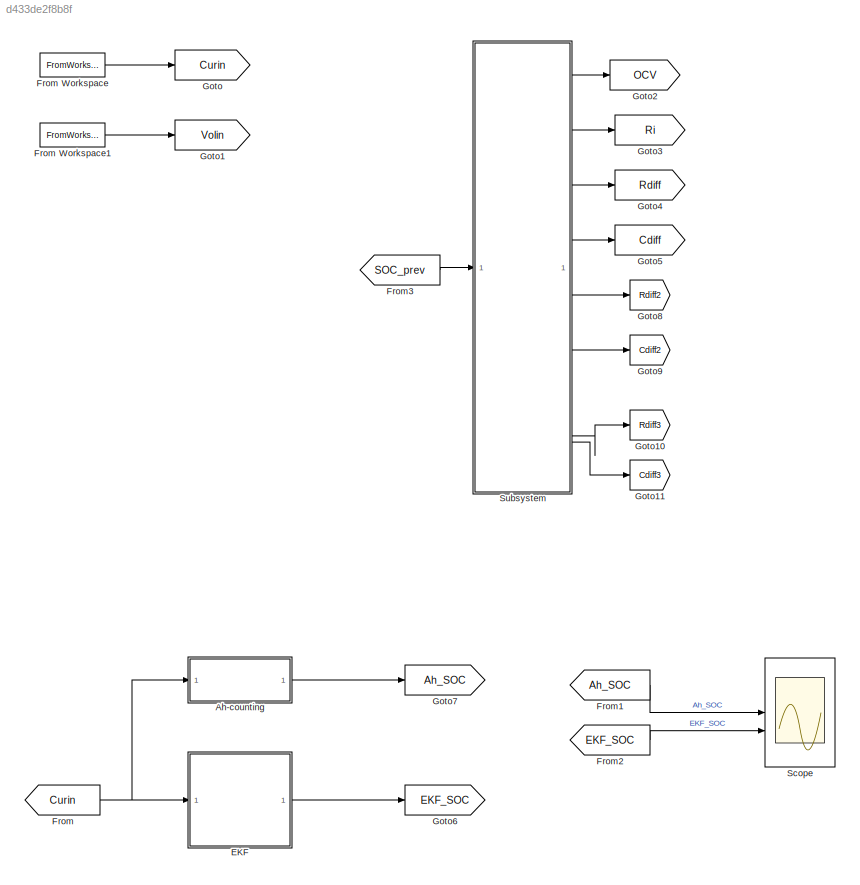
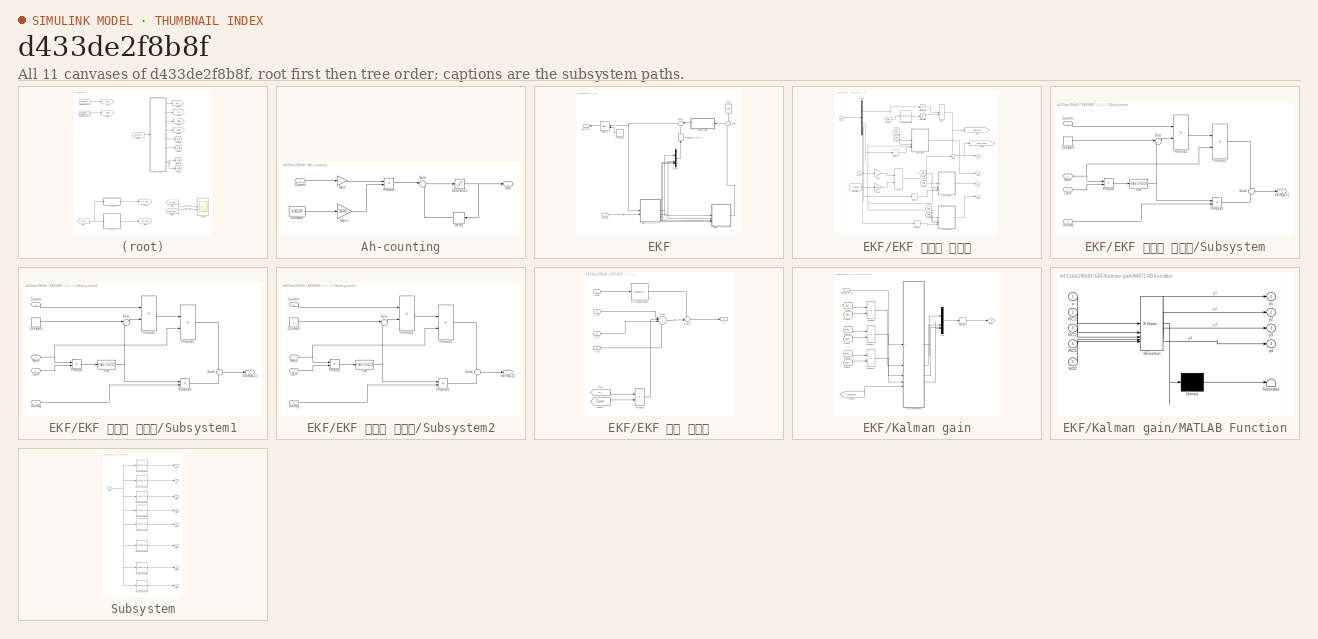
[diagram: thumbnail index - all 11 canvases of the model, root first then tree order]
MODEL slx_d433de2f8b8f
KIND model
CONFIG AbsTol = auto
CONFIG EnableMultiTasking = off
CONFIG FixedStep = auto
CONFIG MaxStep = auto
CONFIG MinStep = auto
CONFIG RelTol = 1e-3
CONFIG SampleTimeConstraint = Unconstrained
CONFIG SolverName = VariableStepAuto
CONFIG StartTime = 0.0
CONFIG StopTime = length(Current)
BLOCK [SubSystem] Ah-counting
BLOCK [Constant] Ah-counting/Constant
  Value = 4.8529
BLOCK [Inport] Ah-counting/Current
BLOCK [Delay] Ah-counting/Delay
  DelayLength = 1
  InitialCondition = 1
  InputPortMap = u0
  NameLocation = top
BLOCK [Gain] Ah-counting/Gain
BLOCK [Gain] Ah-counting/Gain1
  Gain = 3600
BLOCK [Product] Ah-counting/Product
  Inputs = */
BLOCK [Outport] Ah-counting/SOC
BLOCK [Saturate] Ah-counting/Saturation
  LowerLimit = 0
  UpperLimit = 1
BLOCK [Sum] Ah-counting/Sum
  Inputs = |++
BLOCK [SubSystem] EKF
BLOCK [Constant] EKF/Constant
  NameLocation = top
BLOCK [Inport] EKF/Current
BLOCK [Outport] EKF/EKF SOC
  NameLocation = top
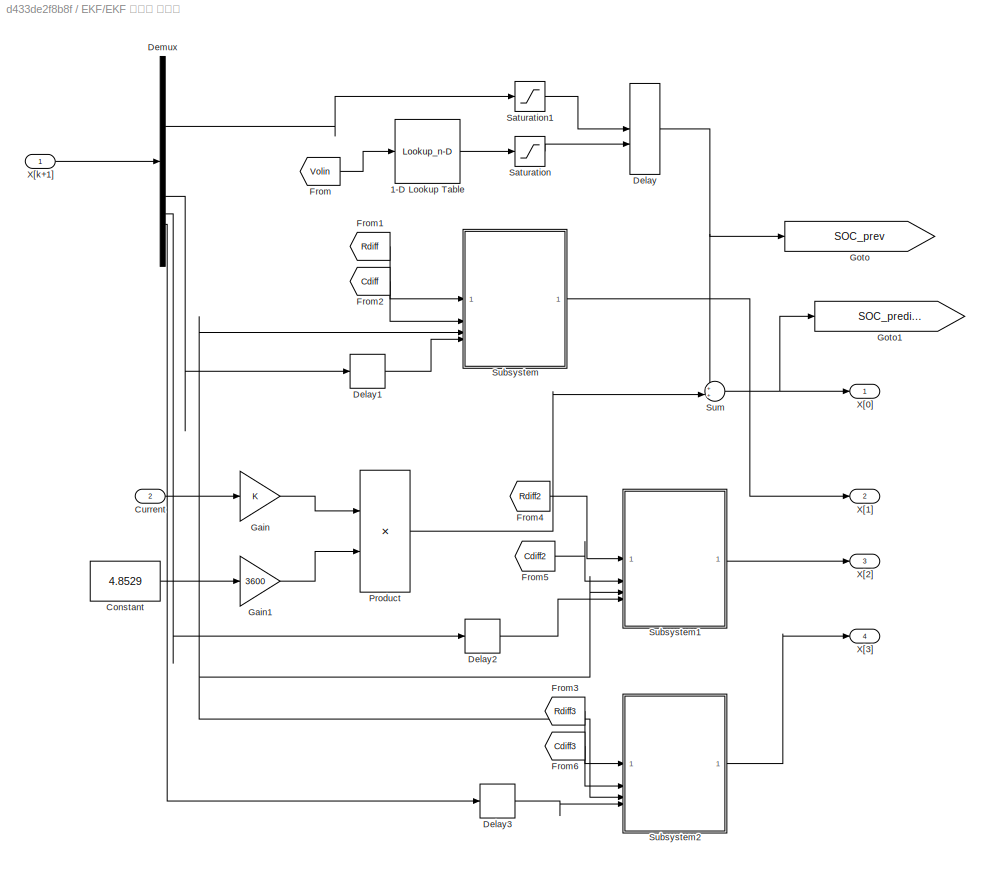
BLOCK [SubSystem] EKF/EKF 시스템 방정식
BLOCK [Lookup_n-D] EKF/EKF 시스템 방정식/1-D Lookup Table
  BreakpointsForDimension1 = SOC_OCV
  InputPortMap = u0
  InternalRulePriority = Speed
  NumberOfTableDimensions = 1
  RndMeth = Simplest
  Table = OCV_fit
BLOCK [Constant] EKF/EKF 시스템 방정식/Constant
  Value = 4.8529
BLOCK [Inport] EKF/EKF 시스템 방정식/Current
  Port = 2
BLOCK [Delay] EKF/EKF 시스템 방정식/Delay
  DelayLength = 1
  InitialConditionSource = Input port
  InputPortMap = u0,p4
BLOCK [Delay] EKF/EKF 시스템 방정식/Delay1
  DelayLength = 1
  InputPortMap = u0
BLOCK [Delay] EKF/EKF 시스템 방정식/Delay2
  DelayLength = 1
  InputPortMap = u0
BLOCK [Delay] EKF/EKF 시스템 방정식/Delay3
  DelayLength = 1
  InputPortMap = u0
BLOCK [Demux] EKF/EKF 시스템 방정식/Demux
BLOCK [From] EKF/EKF 시스템 방정식/From
  GotoTag = Volin
  TagVisibility = global
BLOCK [From] EKF/EKF 시스템 방정식/From1
  GotoTag = Rdiff
  TagVisibility = global
BLOCK [From] EKF/EKF 시스템 방정식/From2
  GotoTag = Cdiff
  TagVisibility = global
BLOCK [From] EKF/EKF 시스템 방정식/From3
  GotoTag = Rdiff3
  TagVisibility = global
BLOCK [From] EKF/EKF 시스템 방정식/From4
  GotoTag = Rdiff2
  TagVisibility = global
BLOCK [From] EKF/EKF 시스템 방정식/From5
  GotoTag = Cdiff2
  TagVisibility = global
BLOCK [From] EKF/EKF 시스템 방정식/From6
  GotoTag = Cdiff3
  TagVisibility = global
BLOCK [Gain] EKF/EKF 시스템 방정식/Gain
BLOCK [Gain] EKF/EKF 시스템 방정식/Gain1
  Gain = 3600
BLOCK [Goto] EKF/EKF 시스템 방정식/Goto
  GotoTag = SOC_prev
  TagVisibility = global
BLOCK [Goto] EKF/EKF 시스템 방정식/Goto1
  GotoTag = SOC_predict
  TagVisibility = global
BLOCK [Product] EKF/EKF 시스템 방정식/Product
  Inputs = */
BLOCK [Saturate] EKF/EKF 시스템 방정식/Saturation
  LowerLimit = 0
  UpperLimit = 1
BLOCK [Saturate] EKF/EKF 시스템 방정식/Saturation1
  LowerLimit = 0
  UpperLimit = 1
BLOCK [SubSystem] EKF/EKF 시스템 방정식/Subsystem
BLOCK [Inport] EKF/EKF 시스템 방정식/Subsystem/Cdiff
  Port = 2
BLOCK [Constant] EKF/EKF 시스템 방정식/Subsystem/Constant
BLOCK [Inport] EKF/EKF 시스템 방정식/Subsystem/Current
  Port = 3
BLOCK [Fcn] EKF/EKF 시스템 방정식/Subsystem/Fcn
  Expr = exp(-1/u(1))
BLOCK [Product] EKF/EKF 시스템 방정식/Subsystem/Product
BLOCK [Product] EKF/EKF 시스템 방정식/Subsystem/Product1
BLOCK [Product] EKF/EKF 시스템 방정식/Subsystem/Product2
BLOCK [Product] EKF/EKF 시스템 방정식/Subsystem/Product3
BLOCK [Inport] EKF/EKF 시스템 방정식/Subsystem/Rdiff
BLOCK [Sum] EKF/EKF 시스템 방정식/Subsystem/Sum
  Inputs = |+-
BLOCK [Sum] EKF/EKF 시스템 방정식/Subsystem/Sum1
  Inputs = +|+
BLOCK [Outport] EKF/EKF 시스템 방정식/Subsystem/Vdiff[k+1]
BLOCK [Inport] EKF/EKF 시스템 방정식/Subsystem/Vdiff[k]
  Port = 4
BLOCK [SubSystem] EKF/EKF 시스템 방정식/Subsystem1
BLOCK [Inport] EKF/EKF 시스템 방정식/Subsystem1/Cdiff
  Port = 2
BLOCK [Constant] EKF/EKF 시스템 방정식/Subsystem1/Constant
BLOCK [Inport] EKF/EKF 시스템 방정식/Subsystem1/Current
  Port = 3
BLOCK [Fcn] EKF/EKF 시스템 방정식/Subsystem1/Fcn
  Expr = exp(-1/u(1))
BLOCK [Product] EKF/EKF 시스템 방정식/Subsystem1/Product
BLOCK [Product] EKF/EKF 시스템 방정식/Subsystem1/Product1
BLOCK [Product] EKF/EKF 시스템 방정식/Subsystem1/Product2
BLOCK [Product] EKF/EKF 시스템 방정식/Subsystem1/Product3
BLOCK [Inport] EKF/EKF 시스템 방정식/Subsystem1/Rdiff
BLOCK [Sum] EKF/EKF 시스템 방정식/Subsystem1/Sum
  Inputs = |+-
BLOCK [Sum] EKF/EKF 시스템 방정식/Subsystem1/Sum1
  Inputs = +|+
BLOCK [Outport] EKF/EKF 시스템 방정식/Subsystem1/Vdiff[k+1]
BLOCK [Inport] EKF/EKF 시스템 방정식/Subsystem1/Vdiff[k]
  Port = 4
BLOCK [SubSystem] EKF/EKF 시스템 방정식/Subsystem2
BLOCK [Inport] EKF/EKF 시스템 방정식/Subsystem2/Cdiff
  Port = 2
BLOCK [Constant] EKF/EKF 시스템 방정식/Subsystem2/Constant
BLOCK [Inport] EKF/EKF 시스템 방정식/Subsystem2/Current
  Port = 3
BLOCK [Fcn] EKF/EKF 시스템 방정식/Subsystem2/Fcn
  Expr = exp(-1/u(1))
BLOCK [Product] EKF/EKF 시스템 방정식/Subsystem2/Product
BLOCK [Product] EKF/EKF 시스템 방정식/Subsystem2/Product1
BLOCK [Product] EKF/EKF 시스템 방정식/Subsystem2/Product2
BLOCK [Product] EKF/EKF 시스템 방정식/Subsystem2/Product3
BLOCK [Inport] EKF/EKF 시스템 방정식/Subsystem2/Rdiff
BLOCK [Sum] EKF/EKF 시스템 방정식/Subsystem2/Sum
  Inputs = |+-
BLOCK [Sum] EKF/EKF 시스템 방정식/Subsystem2/Sum1
  Inputs = +|+
BLOCK [Outport] EKF/EKF 시스템 방정식/Subsystem2/Vdiff[k+1]
BLOCK [Inport] EKF/EKF 시스템 방정식/Subsystem2/Vdiff[k]
  Port = 4
BLOCK [Sum] EKF/EKF 시스템 방정식/Sum
  Inputs = ++|
BLOCK [Outport] EKF/EKF 시스템 방정식/X[0]
BLOCK [Outport] EKF/EKF 시스템 방정식/X[1]
  Port = 2
BLOCK [Outport] EKF/EKF 시스템 방정식/X[2]
  Port = 3
BLOCK [Outport] EKF/EKF 시스템 방정식/X[3]
  Port = 4
BLOCK [Inport] EKF/EKF 시스템 방정식/X[k+1]
BLOCK [SubSystem] EKF/EKF 측정 방정식
BLOCK [Lookup_n-D] EKF/EKF 측정 방정식/1-D Lookup Table
  BreakpointsForDimension1 = SOC_OCV
  InputPortMap = u0
  InternalRulePriority = Speed
  NumberOfTableDimensions = 1
  RndMeth = Simplest
  Table = OCV_fit
BLOCK [From] EKF/EKF 측정 방정식/From
  GotoTag = Ri
  TagVisibility = global
BLOCK [From] EKF/EKF 측정 방정식/From1
  GotoTag = Curin
  TagVisibility = global
BLOCK [Product] EKF/EKF 측정 방정식/Product
BLOCK [Sum] EKF/EKF 측정 방정식/Sum
  Inputs = |++++
BLOCK [Sum] EKF/EKF 측정 방정식/Sum1
  Inputs = ++|
BLOCK [Outport] EKF/EKF 측정 방정식/Vt
BLOCK [Inport] EKF/EKF 측정 방정식/X[0]
BLOCK [Inport] EKF/EKF 측정 방정식/X[1]
  Port = 2
BLOCK [Inport] EKF/EKF 측정 방정식/X[2]
  Port = 3
BLOCK [Inport] EKF/EKF 측정 방정식/X[3]
  Port = 4
BLOCK [From] EKF/From
  GotoTag = Volin
  NameLocation = left
  TagVisibility = global
BLOCK [SubSystem] EKF/Kalman gain
  NameLocation = top
BLOCK [From] EKF/Kalman gain/From
  GotoTag = Rdiff
  TagVisibility = global
BLOCK [From] EKF/Kalman gain/From1
  GotoTag = Cdiff
  TagVisibility = global
BLOCK [From] EKF/Kalman gain/From2
  GotoTag = SOC_predict
  TagVisibility = global
BLOCK [From] EKF/Kalman gain/From3
  GotoTag = Rdiff2
  TagVisibility = global
BLOCK [From] EKF/Kalman gain/From4
  GotoTag = Cdiff2
  TagVisibility = global
BLOCK [From] EKF/Kalman gain/From5
  GotoTag = Rdiff3
  TagVisibility = global
BLOCK [From] EKF/Kalman gain/From6
  GotoTag = Cdiff3
  TagVisibility = global
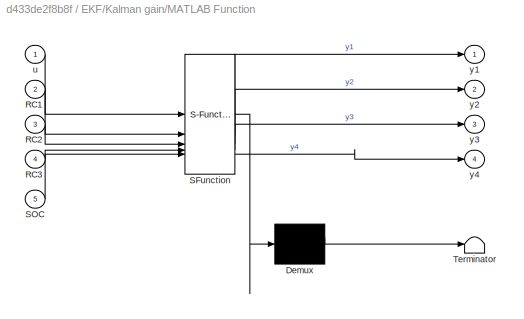
BLOCK [SubSystem] EKF/Kalman gain/MATLAB Function
  ErrorFcn = Stateflow.Translate.translate
  PermitHierarchicalResolution = ExplicitOnly
  SFBlockType = MATLAB Function
  TreatAsAtomicUnit = on
BLOCK [Demux] EKF/Kalman gain/MATLAB Function/ Demux 
  Outputs = 1
BLOCK [S-Function] EKF/Kalman gain/MATLAB Function/ SFunction 
  EnableBusSupport = off
  FunctionName = sf_sfun
  PortCounts = [5 5]
  SFcnIsStateOwnerBlock = off
  SFunctionDeploymentMode = off
  Tag = Stateflow S-Function 2
BLOCK [Terminator] EKF/Kalman gain/MATLAB Function/ Terminator 
BLOCK [Inport] EKF/Kalman gain/MATLAB Function/RC1
  Port = 2
BLOCK [Inport] EKF/Kalman gain/MATLAB Function/RC2
  Port = 3
BLOCK [Inport] EKF/Kalman gain/MATLAB Function/RC3
  Port = 4
BLOCK [Inport] EKF/Kalman gain/MATLAB Function/SOC
  Port = 5
BLOCK [Inport] EKF/Kalman gain/MATLAB Function/u
BLOCK [Outport] EKF/Kalman gain/MATLAB Function/y1
BLOCK [Outport] EKF/Kalman gain/MATLAB Function/y2
  Port = 2
BLOCK [Outport] EKF/Kalman gain/MATLAB Function/y3
  Port = 3
BLOCK [Outport] EKF/Kalman gain/MATLAB Function/y4
  Port = 4
BLOCK [Mux] EKF/Kalman gain/Mux
  DisplayOption = bar
BLOCK [Outport] EKF/Kalman gain/Out1
BLOCK [Product] EKF/Kalman gain/Product
BLOCK [Product] EKF/Kalman gain/Product1
BLOCK [Product] EKF/Kalman gain/Product2
BLOCK [Reshape] EKF/Kalman gain/Reshape
  OutputDimensionality = Customize
  OutputDimensions = [4,1]
BLOCK [Inport] EKF/Kalman gain/Voltage error
BLOCK [Mux] EKF/Mux
  DisplayOption = bar
BLOCK [Reshape] EKF/Reshape 2,1->4,1
  NameLocation = right
  OutputDimensionality = Customize
  OutputDimensions = [4,1]
BLOCK [Selector] EKF/Selector
  IndexOptions = Index vector (port)
  Indices = [1 3]
  InputPortWidth = 4
  NameLocation = top
  OutputSizes = 1
BLOCK [Sum] EKF/Sum
  Inputs = +|-
  NameLocation = top
BLOCK [Sum] EKF/Sum1
  Inputs = |++
  NameLocation = top
BLOCK [From] From
  GotoTag = Curin
  TagVisibility = global
BLOCK [FromWorkspace] From Workspace
  OutDataTypeStr = double
  SampleTime = 1
  VariableName = Current_in
BLOCK [FromWorkspace] From Workspace1
  OutDataTypeStr = double
  SampleTime = 1
  VariableName = Voltage_in
BLOCK [From] From1
  GotoTag = Ah_SOC
  TagVisibility = global
BLOCK [From] From2
  GotoTag = EKF_SOC
  TagVisibility = global
BLOCK [From] From3
  GotoTag = SOC_prev
  TagVisibility = global
BLOCK [Goto] Goto
  GotoTag = Curin
  TagVisibility = global
BLOCK [Goto] Goto1
  GotoTag = Volin
  TagVisibility = global
BLOCK [Goto] Goto10
  GotoTag = Rdiff3
  TagVisibility = global
BLOCK [Goto] Goto11
  GotoTag = Cdiff3
  TagVisibility = global
BLOCK [Goto] Goto2
  GotoTag = OCV
  TagVisibility = global
BLOCK [Goto] Goto3
  GotoTag = Ri
  TagVisibility = global
BLOCK [Goto] Goto4
  GotoTag = Rdiff
  TagVisibility = global
BLOCK [Goto] Goto5
  GotoTag = Cdiff
  TagVisibility = global
BLOCK [Goto] Goto6
  GotoTag = EKF_SOC
  TagVisibility = global
BLOCK [Goto] Goto7
  GotoTag = Ah_SOC
  TagVisibility = global
BLOCK [Goto] Goto8
  GotoTag = Rdiff2
  TagVisibility = global
BLOCK [Goto] Goto9
  GotoTag = Cdiff2
  TagVisibility = global
BLOCK [Scope] Scope
  ActiveDisplayYMaximum = 1.1255620860044682
  ActiveDisplayYMinimum = -0.12516694768269107
  Floating = off
  GraphicalSettings = {"AxesScalingProperties":{"AlignXAxis":"Center","AlignYAxis":"Center","AutoScaleXAxisLimits":false,"AxesScaling":"Manual","AxesScalingNumUpdates":10,"ExpandOnly":true,"ScaleAxesLimitsAtStop":false,"XAxisDataRange":100,"YAxisDataRange":80},"DisplayProperties":{"ColorOrder":["auto","auto","auto","auto","auto","auto","auto","auto","auto","auto","auto","auto","auto","auto","auto","auto","auto","auto",...<+2121ch>
  MultipleDisplayCache = [{"MaxYLimMag":1.1255620860044682,"MaxYLimReal":1.1255620860044682,"MinYLimMag":0,"MinYLimReal":-0.12516694768269107,"PlotAsMagnitudePhase":false,"ShowGrid":true,"ShowLegend":true,"Title":"%<SignalLabel>","YLabel":""}]
  NumInputPorts = 2
  ScopeFrameLocation = window
  ShowLegend = on
  Visible = on
  WasSavedAsWebScope = on
  WindowPosition = [-3.000000,86.000000,1920.000000,954.000000,]
BLOCK [SubSystem] Subsystem
BLOCK [Lookup_n-D] Subsystem/1-D Lookup Table
  BreakpointsForDimension1 = SOC_OCV
  InputPortMap = u0
  InternalRulePriority = Speed
  NumberOfTableDimensions = 1
  RndMeth = Simplest
  Table = OCV_fit
BLOCK [Lookup_n-D] Subsystem/1-D Lookup Table1
  BreakpointsForDimension1 = SOC_RC
  InputPortMap = u0
  InternalRulePriority = Speed
  NumberOfTableDimensions = 1
  RndMeth = Simplest
  Table = R0_est
BLOCK [Lookup_n-D] Subsystem/1-D Lookup Table2
  BreakpointsForDimension1 = SOC_RC
  InputPortMap = u0
  InternalRulePriority = Speed
  NumberOfTableDimensions = 1
  RndMeth = Simplest
  Table = R1_est
BLOCK [Lookup_n-D] Subsystem/1-D Lookup Table3
  BreakpointsForDimension1 = SOC_RC
  InputPortMap = u0
  InternalRulePriority = Speed
  NumberOfTableDimensions = 1
  RndMeth = Simplest
  Table = C1_est
BLOCK [Lookup_n-D] Subsystem/1-D Lookup Table4
  BreakpointsForDimension1 = SOC_RC
  InputPortMap = u0
  InternalRulePriority = Speed
  NumberOfTableDimensions = 1
  RndMeth = Simplest
  Table = R2_est
BLOCK [Lookup_n-D] Subsystem/1-D Lookup Table5
  BreakpointsForDimension1 = SOC_RC
  InputPortMap = u0
  InternalRulePriority = Speed
  NumberOfTableDimensions = 1
  RndMeth = Simplest
  Table = C2_est
BLOCK [Lookup_n-D] Subsystem/1-D Lookup Table6
  BreakpointsForDimension1 = SOC_RC
  InputPortMap = u0
  InternalRulePriority = Speed
  NumberOfTableDimensions = 1
  RndMeth = Simplest
  Table = R3_est
BLOCK [Lookup_n-D] Subsystem/1-D Lookup Table7
  BreakpointsForDimension1 = SOC_RC
  InputPortMap = u0
  InternalRulePriority = Speed
  NumberOfTableDimensions = 1
  RndMeth = Simplest
  Table = C3_est
BLOCK [Outport] Subsystem/Cdiff1
  Port = 4
BLOCK [Outport] Subsystem/Cdiff2
  Port = 6
BLOCK [Outport] Subsystem/Cdiff3
  Port = 8
BLOCK [Outport] Subsystem/OCV
BLOCK [Outport] Subsystem/Rdiff1
  Port = 3
BLOCK [Outport] Subsystem/Rdiff2
  Port = 5
BLOCK [Outport] Subsystem/Rdiff3
  Port = 7
BLOCK [Outport] Subsystem/Ri
  Port = 2
BLOCK [Inport] Subsystem/SOC
LINE Ah-counting/Constant:1 -> Ah-counting/Gain1:1
LINE Ah-counting/Current:1 -> Ah-counting/Gain:1
LINE Ah-counting/Delay:1 -> Ah-counting/Sum:2
LINE Ah-counting/Gain1:1 -> Ah-counting/Product:2
LINE Ah-counting/Gain:1 -> Ah-counting/Product:1
LINE Ah-counting/Product:1 -> Ah-counting/Sum:1
NET Ah-counting/Saturation:1 -> Ah-counting/Delay:1, Ah-counting/SOC:1
LINE Ah-counting/Sum:1 -> Ah-counting/Saturation:1
LINE Ah-counting:1 -> Goto7:1
LINE EKF/Constant:1 -> EKF/Selector:2
LINE EKF/Current:1 -> EKF/EKF 시스템 방정식:2
LINE EKF/EKF 시스템 방정식/1-D Lookup Table:1 -> EKF/EKF 시스템 방정식/Saturation:1
LINE EKF/EKF 시스템 방정식/Constant:1 -> EKF/EKF 시스템 방정식/Gain1:1
NET EKF/EKF 시스템 방정식/Current:1 -> EKF/EKF 시스템 방정식/Gain:1, EKF/EKF 시스템 방정식/Subsystem1:3, EKF/EKF 시스템 방정식/Subsystem2:3, EKF/EKF 시스템 방정식/Subsystem:3
LINE EKF/EKF 시스템 방정식/Delay1:1 -> EKF/EKF 시스템 방정식/Subsystem:4
LINE EKF/EKF 시스템 방정식/Delay2:1 -> EKF/EKF 시스템 방정식/Subsystem1:4
LINE EKF/EKF 시스템 방정식/Delay3:1 -> EKF/EKF 시스템 방정식/Subsystem2:4
NET EKF/EKF 시스템 방정식/Delay:1 -> EKF/EKF 시스템 방정식/Goto:1, EKF/EKF 시스템 방정식/Sum:1
LINE EKF/EKF 시스템 방정식/Demux:1 -> EKF/EKF 시스템 방정식/Saturation1:1
LINE EKF/EKF 시스템 방정식/Demux:2 -> EKF/EKF 시스템 방정식/Delay1:1
LINE EKF/EKF 시스템 방정식/Demux:3 -> EKF/EKF 시스템 방정식/Delay2:1
LINE EKF/EKF 시스템 방정식/Demux:4 -> EKF/EKF 시스템 방정식/Delay3:1
LINE EKF/EKF 시스템 방정식/From1:1 -> EKF/EKF 시스템 방정식/Subsystem:1
LINE EKF/EKF 시스템 방정식/From2:1 -> EKF/EKF 시스템 방정식/Subsystem:2
LINE EKF/EKF 시스템 방정식/From3:1 -> EKF/EKF 시스템 방정식/Subsystem2:1
LINE EKF/EKF 시스템 방정식/From4:1 -> EKF/EKF 시스템 방정식/Subsystem1:1
LINE EKF/EKF 시스템 방정식/From5:1 -> EKF/EKF 시스템 방정식/Subsystem1:2
LINE EKF/EKF 시스템 방정식/From6:1 -> EKF/EKF 시스템 방정식/Subsystem2:2
LINE EKF/EKF 시스템 방정식/From:1 -> EKF/EKF 시스템 방정식/1-D Lookup Table:1
LINE EKF/EKF 시스템 방정식/Gain1:1 -> EKF/EKF 시스템 방정식/Product:2
LINE EKF/EKF 시스템 방정식/Gain:1 -> EKF/EKF 시스템 방정식/Product:1
LINE EKF/EKF 시스템 방정식/Product:1 -> EKF/EKF 시스템 방정식/Sum:2
LINE EKF/EKF 시스템 방정식/Saturation1:1 -> EKF/EKF 시스템 방정식/Delay:1
LINE EKF/EKF 시스템 방정식/Saturation:1 -> EKF/EKF 시스템 방정식/Delay:2
LINE EKF/EKF 시스템 방정식/Subsystem/Cdiff:1 -> EKF/EKF 시스템 방정식/Subsystem/Product:2
LINE EKF/EKF 시스템 방정식/Subsystem/Constant:1 -> EKF/EKF 시스템 방정식/Subsystem/Sum:1
LINE EKF/EKF 시스템 방정식/Subsystem/Current:1 -> EKF/EKF 시스템 방정식/Subsystem/Product1:1
NET EKF/EKF 시스템 방정식/Subsystem/Fcn:1 -> EKF/EKF 시스템 방정식/Subsystem/Product3:1, EKF/EKF 시스템 방정식/Subsystem/Sum:2
LINE EKF/EKF 시스템 방정식/Subsystem/Product1:1 -> EKF/EKF 시스템 방정식/Subsystem/Product2:1
LINE EKF/EKF 시스템 방정식/Subsystem/Product2:1 -> EKF/EKF 시스템 방정식/Subsystem/Sum1:1
LINE EKF/EKF 시스템 방정식/Subsystem/Product3:1 -> EKF/EKF 시스템 방정식/Subsystem/Sum1:2
LINE EKF/EKF 시스템 방정식/Subsystem/Product:1 -> EKF/EKF 시스템 방정식/Subsystem/Fcn:1
NET EKF/EKF 시스템 방정식/Subsystem/Rdiff:1 -> EKF/EKF 시스템 방정식/Subsystem/Product2:2, EKF/EKF 시스템 방정식/Subsystem/Product:1
LINE EKF/EKF 시스템 방정식/Subsystem/Sum1:1 -> EKF/EKF 시스템 방정식/Subsystem/Vdiff[k+1]:1
LINE EKF/EKF 시스템 방정식/Subsystem/Sum:1 -> EKF/EKF 시스템 방정식/Subsystem/Product1:2
LINE EKF/EKF 시스템 방정식/Subsystem/Vdiff[k]:1 -> EKF/EKF 시스템 방정식/Subsystem/Product3:2
LINE EKF/EKF 시스템 방정식/Subsystem1/Cdiff:1 -> EKF/EKF 시스템 방정식/Subsystem1/Product:2
LINE EKF/EKF 시스템 방정식/Subsystem1/Constant:1 -> EKF/EKF 시스템 방정식/Subsystem1/Sum:1
LINE EKF/EKF 시스템 방정식/Subsystem1/Current:1 -> EKF/EKF 시스템 방정식/Subsystem1/Product1:1
NET EKF/EKF 시스템 방정식/Subsystem1/Fcn:1 -> EKF/EKF 시스템 방정식/Subsystem1/Product3:1, EKF/EKF 시스템 방정식/Subsystem1/Sum:2
LINE EKF/EKF 시스템 방정식/Subsystem1/Product1:1 -> EKF/EKF 시스템 방정식/Subsystem1/Product2:1
LINE EKF/EKF 시스템 방정식/Subsystem1/Product2:1 -> EKF/EKF 시스템 방정식/Subsystem1/Sum1:1
LINE EKF/EKF 시스템 방정식/Subsystem1/Product3:1 -> EKF/EKF 시스템 방정식/Subsystem1/Sum1:2
LINE EKF/EKF 시스템 방정식/Subsystem1/Product:1 -> EKF/EKF 시스템 방정식/Subsystem1/Fcn:1
NET EKF/EKF 시스템 방정식/Subsystem1/Rdiff:1 -> EKF/EKF 시스템 방정식/Subsystem1/Product2:2, EKF/EKF 시스템 방정식/Subsystem1/Product:1
LINE EKF/EKF 시스템 방정식/Subsystem1/Sum1:1 -> EKF/EKF 시스템 방정식/Subsystem1/Vdiff[k+1]:1
LINE EKF/EKF 시스템 방정식/Subsystem1/Sum:1 -> EKF/EKF 시스템 방정식/Subsystem1/Product1:2
LINE EKF/EKF 시스템 방정식/Subsystem1/Vdiff[k]:1 -> EKF/EKF 시스템 방정식/Subsystem1/Product3:2
LINE EKF/EKF 시스템 방정식/Subsystem1:1 -> EKF/EKF 시스템 방정식/X[2]:1
LINE EKF/EKF 시스템 방정식/Subsystem2/Cdiff:1 -> EKF/EKF 시스템 방정식/Subsystem2/Product:2
LINE EKF/EKF 시스템 방정식/Subsystem2/Constant:1 -> EKF/EKF 시스템 방정식/Subsystem2/Sum:1
LINE EKF/EKF 시스템 방정식/Subsystem2/Current:1 -> EKF/EKF 시스템 방정식/Subsystem2/Product1:1
NET EKF/EKF 시스템 방정식/Subsystem2/Fcn:1 -> EKF/EKF 시스템 방정식/Subsystem2/Product3:1, EKF/EKF 시스템 방정식/Subsystem2/Sum:2
LINE EKF/EKF 시스템 방정식/Subsystem2/Product1:1 -> EKF/EKF 시스템 방정식/Subsystem2/Product2:1
LINE EKF/EKF 시스템 방정식/Subsystem2/Product2:1 -> EKF/EKF 시스템 방정식/Subsystem2/Sum1:1
LINE EKF/EKF 시스템 방정식/Subsystem2/Product3:1 -> EKF/EKF 시스템 방정식/Subsystem2/Sum1:2
LINE EKF/EKF 시스템 방정식/Subsystem2/Product:1 -> EKF/EKF 시스템 방정식/Subsystem2/Fcn:1
NET EKF/EKF 시스템 방정식/Subsystem2/Rdiff:1 -> EKF/EKF 시스템 방정식/Subsystem2/Product2:2, EKF/EKF 시스템 방정식/Subsystem2/Product:1
LINE EKF/EKF 시스템 방정식/Subsystem2/Sum1:1 -> EKF/EKF 시스템 방정식/Subsystem2/Vdiff[k+1]:1
LINE EKF/EKF 시스템 방정식/Subsystem2/Sum:1 -> EKF/EKF 시스템 방정식/Subsystem2/Product1:2
LINE EKF/EKF 시스템 방정식/Subsystem2/Vdiff[k]:1 -> EKF/EKF 시스템 방정식/Subsystem2/Product3:2
LINE EKF/EKF 시스템 방정식/Subsystem2:1 -> EKF/EKF 시스템 방정식/X[3]:1
LINE EKF/EKF 시스템 방정식/Subsystem:1 -> EKF/EKF 시스템 방정식/X[1]:1
NET EKF/EKF 시스템 방정식/Sum:1 -> EKF/EKF 시스템 방정식/Goto1:1, EKF/EKF 시스템 방정식/X[0]:1
LINE EKF/EKF 시스템 방정식/X[k+1]:1 -> EKF/EKF 시스템 방정식/Demux:1
NET EKF/EKF 시스템 방정식:1 -> EKF/EKF 측정 방정식:1, EKF/Mux:1
NET EKF/EKF 시스템 방정식:2 -> EKF/EKF 측정 방정식:2, EKF/Mux:2
NET EKF/EKF 시스템 방정식:3 -> EKF/EKF 측정 방정식:3, EKF/Mux:3
NET EKF/EKF 시스템 방정식:4 -> EKF/EKF 측정 방정식:4, EKF/Mux:4
LINE EKF/EKF 측정 방정식/1-D Lookup Table:1 -> EKF/EKF 측정 방정식/Sum1:1
LINE EKF/EKF 측정 방정식/From1:1 -> EKF/EKF 측정 방정식/Product:2
LINE EKF/EKF 측정 방정식/From:1 -> EKF/EKF 측정 방정식/Product:1
LINE EKF/EKF 측정 방정식/Product:1 -> EKF/EKF 측정 방정식/Sum:2
LINE EKF/EKF 측정 방정식/Sum1:1 -> EKF/EKF 측정 방정식/Vt:1
LINE EKF/EKF 측정 방정식/Sum:1 -> EKF/EKF 측정 방정식/Sum1:2
LINE EKF/EKF 측정 방정식/X[0]:1 -> EKF/EKF 측정 방정식/1-D Lookup Table:1
LINE EKF/EKF 측정 방정식/X[1]:1 -> EKF/EKF 측정 방정식/Sum:1
LINE EKF/EKF 측정 방정식/X[2]:1 -> EKF/EKF 측정 방정식/Sum:3
LINE EKF/EKF 측정 방정식/X[3]:1 -> EKF/EKF 측정 방정식/Sum:4
LINE EKF/EKF 측정 방정식:1 -> EKF/Sum:2
LINE EKF/From:1 -> EKF/Sum:1
LINE EKF/Kalman gain/From1:1 -> EKF/Kalman gain/Product:2
LINE EKF/Kalman gain/From2:1 -> EKF/Kalman gain/MATLAB Function:5
LINE EKF/Kalman gain/From3:1 -> EKF/Kalman gain/Product1:1
LINE EKF/Kalman gain/From4:1 -> EKF/Kalman gain/Product1:2
LINE EKF/Kalman gain/From5:1 -> EKF/Kalman gain/Product2:1
LINE EKF/Kalman gain/From6:1 -> EKF/Kalman gain/Product2:2
LINE EKF/Kalman gain/From:1 -> EKF/Kalman gain/Product:1
LINE EKF/Kalman gain/MATLAB Function:1 -> EKF/Kalman gain/Mux:1
LINE EKF/Kalman gain/MATLAB Function:2 -> EKF/Kalman gain/Mux:2
LINE EKF/Kalman gain/MATLAB Function:3 -> EKF/Kalman gain/Mux:3
LINE EKF/Kalman gain/MATLAB Function:4 -> EKF/Kalman gain/Mux:4
LINE EKF/Kalman gain/Mux:1 -> EKF/Kalman gain/Reshape:1
LINE EKF/Kalman gain/Product1:1 -> EKF/Kalman gain/MATLAB Function:3
LINE EKF/Kalman gain/Product2:1 -> EKF/Kalman gain/MATLAB Function:4
LINE EKF/Kalman gain/Product:1 -> EKF/Kalman gain/MATLAB Function:2
LINE EKF/Kalman gain/Reshape:1 -> EKF/Kalman gain/Out1:1
LINE EKF/Kalman gain/Voltage error:1 -> EKF/Kalman gain/MATLAB Function:1
LINE EKF/Kalman gain:1 -> EKF/Sum1:1
LINE EKF/Mux:1 -> EKF/Reshape 2,1->4,1:1
LINE EKF/Reshape 2,1->4,1:1 -> EKF/Sum1:2
LINE EKF/Selector:1 -> EKF/EKF SOC:1
NET EKF/Sum1:1 -> EKF/EKF 시스템 방정식:1, EKF/Selector:1
LINE EKF/Sum:1 -> EKF/Kalman gain:1
LINE EKF:1 -> Goto6:1
LINE From Workspace1:1 -> Goto1:1
LINE From Workspace:1 -> Goto:1
LINE From1:1 -> Scope:1
LINE From2:1 -> Scope:2
LINE From3:1 -> Subsystem:1
NET From:1 -> Ah-counting:1, EKF:1
LINE Subsystem/1-D Lookup Table1:1 -> Subsystem/Ri:1
LINE Subsystem/1-D Lookup Table2:1 -> Subsystem/Rdiff1:1
LINE Subsystem/1-D Lookup Table3:1 -> Subsystem/Cdiff1:1
LINE Subsystem/1-D Lookup Table4:1 -> Subsystem/Rdiff2:1
LINE Subsystem/1-D Lookup Table5:1 -> Subsystem/Cdiff2:1
LINE Subsystem/1-D Lookup Table6:1 -> Subsystem/Rdiff3:1
LINE Subsystem/1-D Lookup Table7:1 -> Subsystem/Cdiff3:1
LINE Subsystem/1-D Lookup Table:1 -> Subsystem/OCV:1
NET Subsystem/SOC:1 -> Subsystem/1-D Lookup Table1:1, Subsystem/1-D Lookup Table2:1, Subsystem/1-D Lookup Table3:1, Subsystem/1-D Lookup Table4:1, Subsystem/1-D Lookup Table5:1, Subsystem/1-D Lookup Table6:1, Subsystem/1-D Lookup Table7:1, Subsystem/1-D Lookup Table:1
LINE Subsystem:1 -> Goto2:1
LINE Subsystem:2 -> Goto3:1
LINE Subsystem:3 -> Goto4:1
LINE Subsystem:4 -> Goto5:1
LINE Subsystem:5 -> Goto8:1
LINE Subsystem:6 -> Goto9:1
LINE Subsystem:7 -> Goto10:1
LINE Subsystem:8 -> Goto11:1
note: NET lines group one-source signal fan-out (src -> all destinations, sorted); 1:1 wires keep LINE
CHART EKF/Kalman gain/MATLAB Function states=1 transitions=1
  STATE_LABEL 'eML_blk_kernel()'
  STATE_LABEL 'SCRIPT:\nfunction [y1, y2,y3,y4] = fcn(u, RC1, RC2, RC3, SOC)\n\npersistent P firstRun\n\ndt=1;\n\n    p1 = 221.4;\n    p2 = -1154;\n    p3 = 2509;\n    p4 = -2932;\n    p5 = 1981;\n    p6 = -774;\n    p7 = 167.4;\n    p8 = -18.83;\n    p9 = 1.644;\n\n    H = [9*p1*SOC^8+8*p2*SOC^7+7*p3*SOC^6+6*p4*SOC^5+...\n        5*p5*SOC^4+4*p6*SOC^3+3*p7*SOC^2+2*p8*SOC^1+p9 1 1 1];\n\n    A = [1 0 0 0; 0 exp(-(dt/RC1)) 0 0; 0 0 ...<+319ch>'
CHART  states=0 transitions=0
